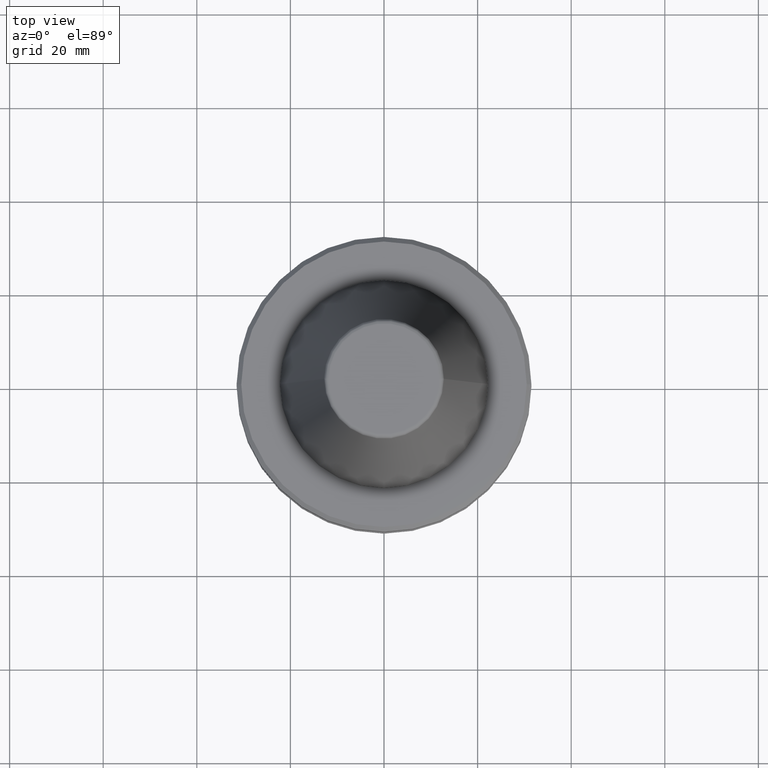
[diagram: clean part render]
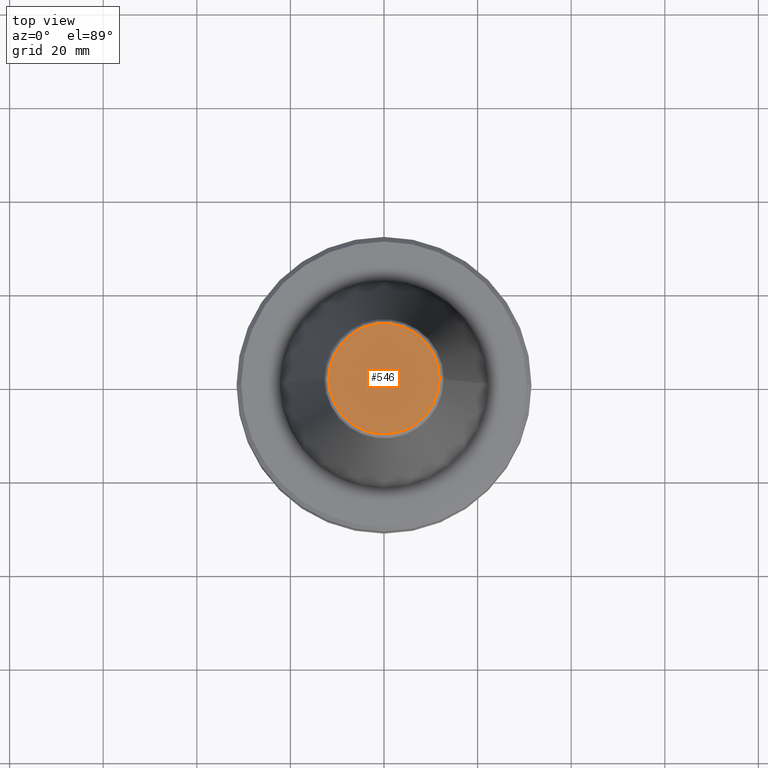
[diagram: same view with one face highlighted and labeled with its STEP entity id]
A machine part, top view. The second image highlights one B-rep face of the part: STEP entity #546.
In plain terms, the highlighted planar face has unit normal (0, 0, -1).
Its self-contained STEP definition (entity closure, byte-faithful):
#68 = CARTESIAN_POINT ( 'NONE',  ( -11.82266927716824200, 1.508450817090343500E-015, 65.40000000000067400 ) ) ;
#69 = CARTESIAN_POINT ( 'NONE',  ( 0.0000000000000000000, 0.0000000000000000000, 65.40000000000067400 ) ) ;
#81 = EDGE_CURVE ( 'NONE', #203, #906, #1021, .T. ) ;
#122 = AXIS2_PLACEMENT_3D ( 'NONE', #69, #939, #1005 ) ;
#203 = VERTEX_POINT ( 'NONE', #68 ) ;
#205 = DIRECTION ( 'NONE',  ( 1.000000000000000000, 0.0000000000000000000, 0.0000000000000000000 ) ) ;
#278 = EDGE_CURVE ( 'NONE', #906, #203, #847, .T. ) ;
#423 = CARTESIAN_POINT ( 'NONE',  ( 11.82266927716824200, 0.0000000000000000000, 65.40000000000067400 ) ) ;
#431 = PLANE ( 'NONE',  #465 ) ;
#465 = AXIS2_PLACEMENT_3D ( 'NONE', #774, #643, #1012 ) ;
#497 = FACE_OUTER_BOUND ( 'NONE', #638, .T. ) ;
#502 = CARTESIAN_POINT ( 'NONE',  ( 0.0000000000000000000, 0.0000000000000000000, 65.40000000000067400 ) ) ;
#546 = ADVANCED_FACE ( 'NONE', ( #497 ), #431, .F. ) ;
#638 = EDGE_LOOP ( 'NONE', ( #809, #920 ) ) ;
#643 = DIRECTION ( 'NONE',  ( 0.0000000000000000000, 0.0000000000000000000, -1.000000000000000000 ) ) ;
#774 = CARTESIAN_POINT ( 'NONE',  ( 0.0000000000000000000, 11.82266927716824200, 65.40000000000048900 ) ) ;
#809 = ORIENTED_EDGE ( 'NONE', *, *, #278, .T. ) ;
#847 = CIRCLE ( 'NONE', #1023, 11.82266927716824200 ) ;
#906 = VERTEX_POINT ( 'NONE', #423 ) ;
#920 = ORIENTED_EDGE ( 'NONE', *, *, #81, .T. ) ;
#939 = DIRECTION ( 'NONE',  ( -0.0000000000000000000, -0.0000000000000000000, 1.000000000000000000 ) ) ;
#980 = DIRECTION ( 'NONE',  ( -0.0000000000000000000, -0.0000000000000000000, 1.000000000000000000 ) ) ;
#1005 = DIRECTION ( 'NONE',  ( 1.000000000000000000, 0.0000000000000000000, 0.0000000000000000000 ) ) ;
#1012 = DIRECTION ( 'NONE',  ( -1.000000000000000000, 0.0000000000000000000, -0.0000000000000000000 ) ) ;
#1021 = CIRCLE ( 'NONE', #122, 11.82266927716824200 ) ;
#1023 = AXIS2_PLACEMENT_3D ( 'NONE', #502, #980, #205 ) ;